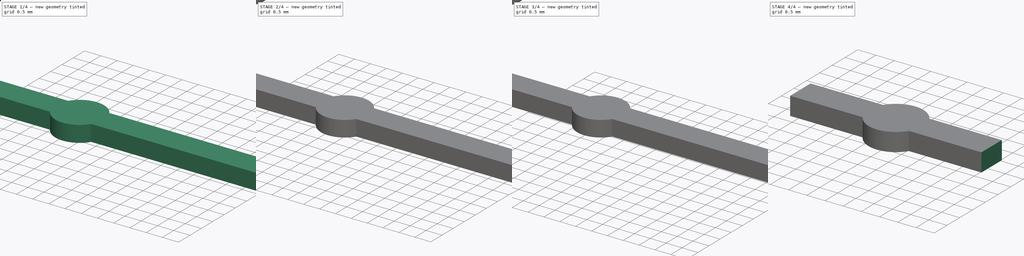
[diagram: build sequence overview — one tinted view per stage of 4, left to right]
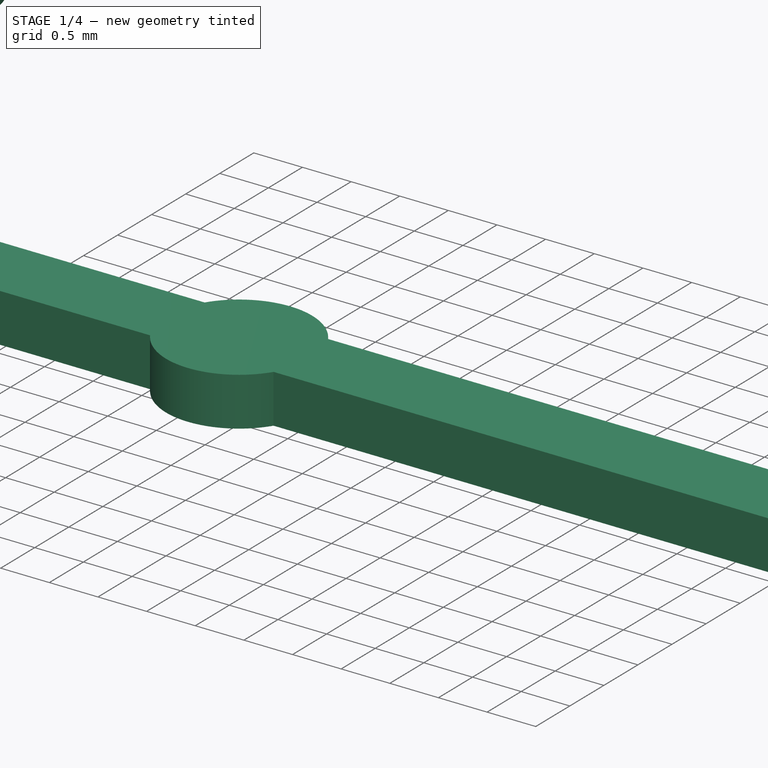
[diagram: stage 1 of 4 — iso view after this stage's code; geometry added in this stage tinted green]
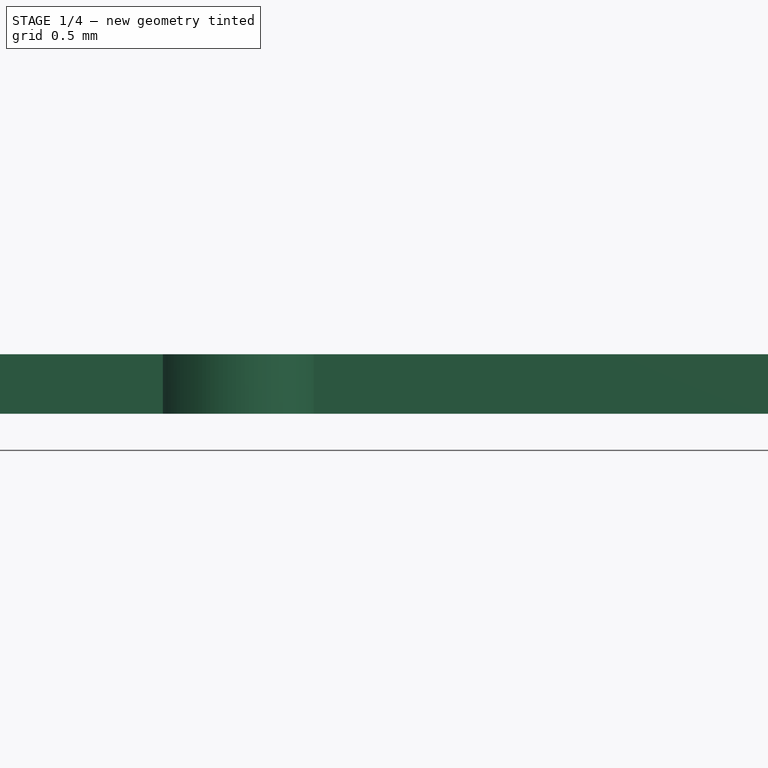
[diagram: stage 1 of 4 — front view after this stage's code; geometry added in this stage tinted green]
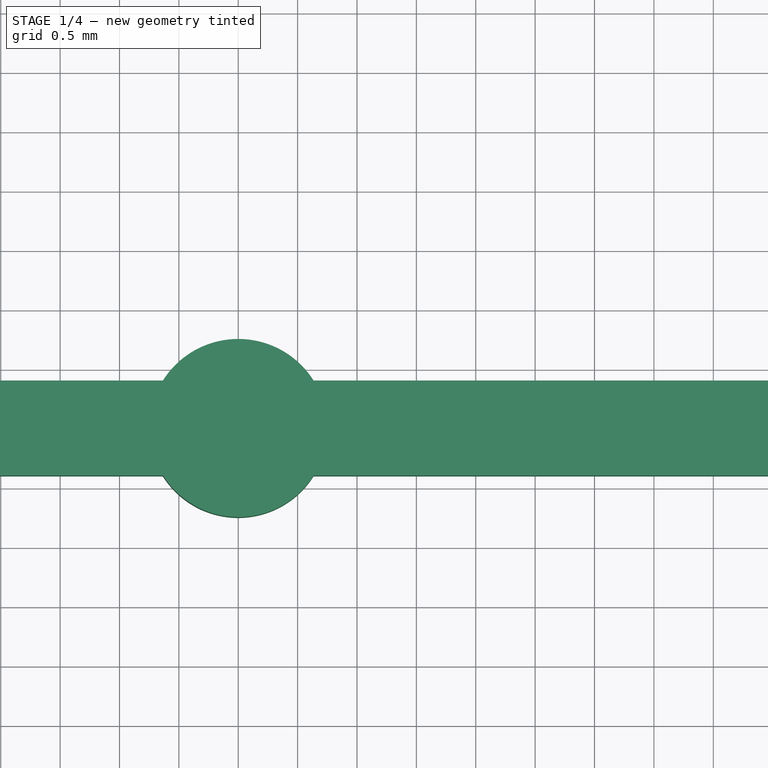
[diagram: stage 1 of 4 — top view after this stage's code; geometry added in this stage tinted green]
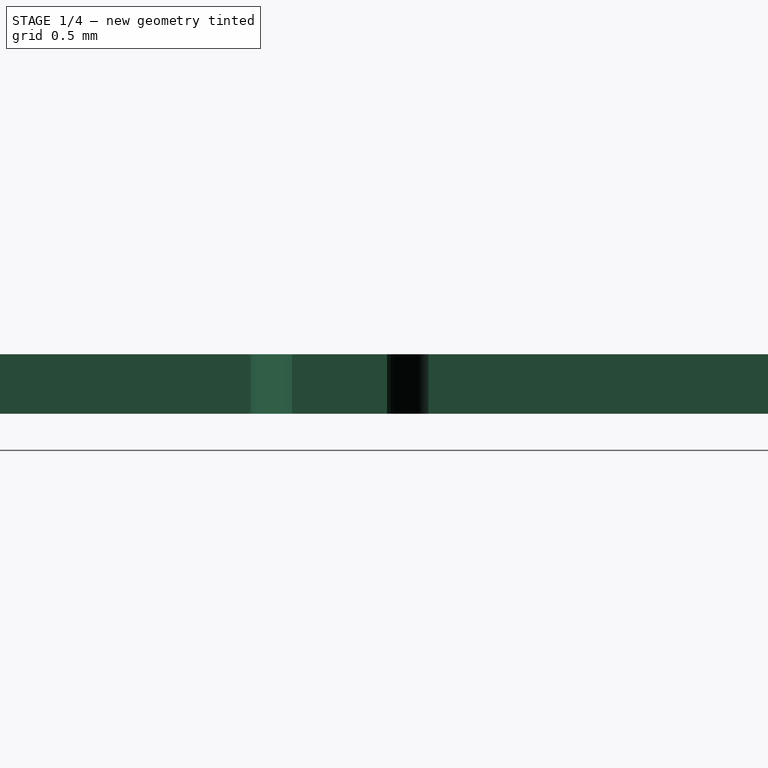
[diagram: stage 1 of 4 — right view after this stage's code; geometry added in this stage tinted green]
FCSTD DOCUMENT  (FreeCAD 0.21R33675 (Git))
Label: ax2
License: All rights reserved
LicenseURL: http://en.wikipedia.org/wiki/All_rights_reserved
objects: Sketcher::SketchObject×7, PartDesign::Point×5, PartDesign::Pad×5, PartDesign::Plane×4, PartDesign::SubtractiveSphere×4, PartDesign::Pocket×2, Spreadsheet::Sheet×1, PartDesign::Body×1
note: 39 computed .brp shape members not serialized (recipe doc carries the construction recipe); baked Part::Feature solids carry a one-line shape summary decoded from their .brp

FEATURE [Spreadsheet::Sheet] Spreadsheet
  cells = A2='Design Parameters; A3='RefLength; B3(RefLength)==1 mm; A4='Width; B4(Width)==0.8 * RefLength; A5='Height; B5(Height)==0.5 * RefLength; A6='PwpToTipLength; B6(PwpToTipLength)==10 * RefLength; A7='MuAngle; B7(MuAngle)==20 deg; A8='MuAxisToBallCenter; B8(MuAxisToBallCenter)==5.25 * RefLength; A9='MuAdjustedLength; B9(MuAdjustedLength)==MuAxisToBallCenter * sin(MuAngle); A10='PwpToBaseLength; B10(PwpToBaseLength)==5 * RefLength + MuAdjustedLength; A11='PwpToAx3Length; B11(PwpToAx3Length)==6.8 mm; A12='SlaOffset; B12(SlaOffset)==5 * RefLength; A13='ScuOffset; B13(ScuOffset)==5 * RefLength; A14='BallDiameter; B14(BallDiameter)==1.25 * RefLength; A15='BallMargin; B15(BallMargin)==0.01 * RefLength; A16='BallCutoutDiameter; B16(BallCutoutDiameter)==BallDiameter + 2 * BallMargin; A17='BallCutoutDepth; B17(BallCutoutDepth)==0.25 * BallCutoutDiameter; A18='MainSketchDatumPlaneZOffset; B18(MainSketchDatumPlaneZOffset)==0.5 * Height + 0.5 * BallCutoutDiameter - BallCutoutDepth; A19='Ax3PlateSketchDatumPlaneZOffset; B19(Ax3PlateSketchDatumPlaneZOffset)==MainSketchDatumPlaneZOffset; A21='PwpPlateDiameter; B21(PwpPlateDiameter)==1.2 * BallDiameter; A22='PwpBallCenterX; B22(PwpBallCenterX)==0 * RefLength; A23='PwpBallCenterY; B23(PwpBallCenterY)==0 * RefLength; A24='PwpBallCenterZ; B24(PwpBallCenterZ)==-(0.5 * Height + 0.5 * BallCutoutDiameter - BallCutoutDepth) + MainSketchDatumPlaneZOffset; A26='SlaPlateDiameter; B26(SlaPlateDiameter)==1.2 * BallDiameter; A27='SlaBallCenterX; B27(SlaBallCenterX)==-PwpToBaseLength; A28='SlaBallCenterY; B28(SlaBallCenterY)==SlaOffset; A29='SlaBallCenterZ; B29(SlaBallCenterZ)==0.5 * Height + 0.5 * BallCutoutDiameter - BallCutoutDepth + MainSketchDatumPlaneZOffset; A31='ScuPlateDiameter; B31(ScuPlateDiameter)==1.2 * BallDiameter; A32='ScuBallCenterX; B32(ScuBallCenterX)==-PwpToBaseLength; A33='ScuBallCenterY; B33(ScuBallCenterY)==-ScuOffset; A34='ScuBallCenterZ; B34(ScuBallCenterZ)==0.5 * Height + 0.5 * BallCutoutDiameter - BallCutoutDepth + MainSketchDatumPlaneZOffset; A36='Ax3PlateDiameter; B36(Ax3PlateDiameter)==1.5 * RefLength; A37='Ax3BallCenterX; B37(Ax3BallCenterX)==PwpToAx3Length; A38='Ax3BallCenterY; B38(Ax3BallCenterY)==0.5 * Width + 0.5 * BallCutoutDiameter - BallCutoutDepth; A39='Ax3BallCenterZ; B39(Ax3BallCenterZ)==0 * RefLength + MainSketchDatumPlaneZOffset; A41='FirstCutDatumPlaneXPos; B41(FirstCutDatumPlaneXPos)==0.5 * MuAxisToBallCenter; A42='SecondCutDatumPlaneXPos; B42(SecondCutDatumPlaneXPos)==0.5 * MuAxisToBallCenter
FEATURE [PartDesign::Point] DatumPoint  label="PwpBallCenterDatumPoint"
  AttacherType = Attacher::AttachEnginePoint
  MapMode = 32
  Support = -> [XY_Plane]
  expr: .AttachmentOffset.Base.x = Spreadsheet.PwpBallCenterX
  expr: .AttachmentOffset.Base.y = Spreadsheet.PwpBallCenterY
  expr: .AttachmentOffset.Base.z = Spreadsheet.PwpBallCenterZ
FEATURE [PartDesign::Point] DatumPoint001  label="SlaBallCenterDatumPoint"
  AttacherType = Attacher::AttachEnginePoint
  AttachmentOffset = pos=(-6.79561,5,1.135) rot=(0,0,1;0rad)
  MapMode = 32
  Placement = pos=(-6.79561,5,1.135) rot=(0,0,1;0rad)
  Support = -> [XY_Plane]
  expr: .AttachmentOffset.Base.x = Spreadsheet.SlaBallCenterX
  expr: .AttachmentOffset.Base.y = Spreadsheet.SlaBallCenterY
  expr: .AttachmentOffset.Base.z = Spreadsheet.SlaBallCenterZ
FEATURE [PartDesign::Point] DatumPoint002  label="ScuBallCenterDatumPoint"
  AttacherType = Attacher::AttachEnginePoint
  AttachmentOffset = pos=(-6.79561,-5,1.135) rot=(0,0,1;0rad)
  MapMode = 32
  Placement = pos=(-6.79561,-5,1.135) rot=(0,0,1;0rad)
  Support = -> [XY_Plane]
  expr: .AttachmentOffset.Base.x = Spreadsheet.ScuBallCenterX
  expr: .AttachmentOffset.Base.y = Spreadsheet.ScuBallCenterY
  expr: .AttachmentOffset.Base.z = Spreadsheet.ScuBallCenterZ
FEATURE [PartDesign::Point] DatumPoint003  label="Ax3BallCenterDatumPoint"
  AttacherType = Attacher::AttachEnginePoint
  AttachmentOffset = pos=(6.8,0.7175,0.5675) rot=(0,0,1;0rad)
  MapMode = 32
  Placement = pos=(6.8,0.7175,0.5675) rot=(0,0,1;0rad)
  Support = -> [XY_Plane]
  expr: .AttachmentOffset.Base.x = Spreadsheet.Ax3BallCenterX
  expr: .AttachmentOffset.Base.y = Spreadsheet.Ax3BallCenterY
  expr: .AttachmentOffset.Base.z = Spreadsheet.Ax3BallCenterZ
FEATURE [PartDesign::Plane] DatumPlane  label="MainSketchDatumPlane"
  AttachmentOffset = pos=(0,0,0.5675) rot=(0,0,1;0rad)
  Length = 60
  MapMode = 5
  Placement = pos=(0,0,0.5675) rot=(0,0,1;0rad)
  ResizeMode = 0
  Support = -> [XY_Plane]
  Width = 60
  expr: .AttachmentOffset.Base.z = Spreadsheet.MainSketchDatumPlaneZOffset
FEATURE [Sketcher::SketchObject] Sketch  label="MainSketch"
  FullyConstrained = true
  MapMode = 5
  Placement = pos=(0,0,0.5675) rot=(0,0,1;0rad)
  Support = -> [DatumPlane]
  expr: Constraints[10] = Spreadsheet.Width
  expr: Constraints[29] = Spreadsheet.PwpToBaseLength
  expr: Constraints[43] = Spreadsheet.PwpToTipLength
  expr: Constraints[6] = Spreadsheet.SlaOffset
  expr: Constraints[7] = Spreadsheet.ScuOffset
  expr: Constraints[8] = Spreadsheet.Width
  sketch-geometry (15):
    g0: LineSegment StartX=-7.19561 StartY=5 StartZ=0 EndX=-7.19561 EndY=0 EndZ=0
    g1: LineSegment StartX=-7.19561 StartY=0 StartZ=0 EndX=-7.19561 EndY=-5 EndZ=0
    g2: LineSegment StartX=-6.39561 StartY=-5 StartZ=0 EndX=-6.39561 EndY=-0.4 EndZ=0
    g3: LineSegment StartX=10 StartY=-0.4 StartZ=0 EndX=10 EndY=0.4 EndZ=0
    g4: LineSegment StartX=-6.39561 StartY=0.4 StartZ=0 EndX=-6.39561 EndY=5 EndZ=0
    g5: LineSegment StartX=-7.19561 StartY=5 StartZ=0 EndX=-6.79561 EndY=5 EndZ=0
    g6: LineSegment StartX=-6.79561 StartY=5 StartZ=0 EndX=-6.39561 EndY=5 EndZ=0
    g7: LineSegment StartX=-7.19561 StartY=-5 StartZ=0 EndX=-6.79561 EndY=-5 EndZ=0
    g8: LineSegment StartX=-6.79561 StartY=-5 StartZ=0 EndX=-6.39561 EndY=-5 EndZ=0
    g9: LineSegment StartX=-6.79561 StartY=5 StartZ=0 EndX=-6.79561 EndY=0 EndZ=0
    g10: LineSegment StartX=-6.79561 StartY=0 StartZ=0 EndX=-6.79561 EndY=-5 EndZ=0
    g11: LineSegment StartX=0 StartY=0.4 StartZ=0 EndX=0 EndY=0 EndZ=0
    g12: LineSegment StartX=0 StartY=0 StartZ=0 EndX=0 EndY=-0.4 EndZ=0
    g13: LineSegment StartX=-6.39561 StartY=0.4 StartZ=0 EndX=10 EndY=0.4 EndZ=0
    g14: LineSegment StartX=-6.39561 StartY=-0.4 StartZ=0 EndX=10 EndY=-0.4 EndZ=0
  constraints (44):
    c: Vertical(g0)
    c: Coincident(g0,g1)
    c: Vertical(g1)
    c: Vertical(g2)
    c: Vertical(g4)
    c: PointOnObject(g0,g-1)
    c: DistanceY(g0,g0) = 5
    c: DistanceY(g1,g0) = 5
    c: DistanceX(g0,g4) = 0.8
    c: Vertical(g3)
    c: DistanceY(g3,g3) = 0.8
    c: Horizontal(g5)
    c: Coincident(g5,g6)
    c: Horizontal(g6)
    c: Equal(g5,g6)
    c: Coincident(g0,g5)
    c: Coincident(g6,g4)
    c: Horizontal(g7)
    c: Coincident(g7,g8)
    c: Horizontal(g8)
    c: Equal(g7,g8)
    c: Coincident(g1,g7)
    c: Coincident(g8,g2)
    c: Coincident(g9,g10)
    c: PointOnObject(g9,g-1)
    c: Coincident(g9,g5)
    c: Coincident(g10,g7)
    c: Vertical(g9)
    c: Equal(g5,g7)
    c: DistanceX(g9,g-1) = 6.79561
    c: Coincident(g11,g12)
    c: Equal(g11,g12)
    c: Coincident(g11,g-1)
    c: Vertical(g11)
    c: Horizontal(g13)
    c: Coincident(g4,g13)
    c: PointOnObject(g11,g13)
    c: Coincident(g13,g3)
    c: Horizontal(g14)
    c: Coincident(g2,g14)
    c: PointOnObject(g12,g14)
    c: Coincident(g14,g3)
    c: Vertical(g12)
    c: DistanceX(g12,g3) = 10
FEATURE [PartDesign::Pad] Pad  label="MainPad"
  Direction = (0,0,1)
  Length = 0.5
  Length2 = 10
  Midplane = true
  Placement = pos=(0,0,0.5675) rot=(0,0,1;0rad)
  Profile = -> Sketch
  ReferenceAxis = -> Sketch [N_Axis]
  Type = 0
  expr: Length = Spreadsheet.Height
FEATURE [Sketcher::SketchObject] Sketch001  label="PwpPlateSketch"
  FullyConstrained = true
  MapMode = 5
  Placement = pos=(0,0,0.5675) rot=(0,0,1;0rad)
  Support = -> [DatumPlane]
  expr: Constraints[1] = Spreadsheet.PwpPlateDiameter
  sketch-geometry (1):
    g0: Circle CenterX=0 CenterY=0 CenterZ=0 NormalX=0 NormalY=0 NormalZ=1 AngleXU=0 Radius=0.75
  constraints (2):
    c: Coincident(g0,g-1)
    c: Diameter(g0) = 1.5
FEATURE [PartDesign::Pad] Pad001  label="PwpPlatePad"
  BaseFeature = -> Pad
  Direction = (0,0,1)
  Length = 0.5
  Length2 = 10
  Midplane = true
  Placement = pos=(0,0,0.5675) rot=(0,0,1;0rad)
  Profile = -> Sketch001
  ReferenceAxis = -> Sketch001 [N_Axis]
  Type = 0
  expr: Length = Spreadsheet.Height
FEATURE [Sketcher::SketchObject] Sketch002  label="SlaPlateSketch"
  FullyConstrained = true
  MapMode = 5
  Placement = pos=(0,0,0.5675) rot=(0,0,1;0rad)
  Support = -> [DatumPlane]
  expr: Constraints[4] = Spreadsheet.PwpToBaseLength
  expr: Constraints[5] = Spreadsheet.SlaOffset
  expr: Constraints[7] = Spreadsheet.SlaPlateDiameter
  sketch-geometry (3):
    g0: LineSegment StartX=0 StartY=0 StartZ=0 EndX=-6.79561 EndY=0 EndZ=0
    g1: LineSegment StartX=-6.79561 StartY=0 StartZ=0 EndX=-6.79561 EndY=5 EndZ=0
    g2: Circle CenterX=-6.79561 CenterY=5 CenterZ=0 NormalX=0 NormalY=0 NormalZ=1 AngleXU=0 Radius=0.75
  constraints (8):
    c: Horizontal(g0)
    c: Coincident(g0,g1)
    c: Vertical(g1)
    c: Coincident(g0,g-1)
    c: DistanceX(g0,g0) = 6.79561
    c: DistanceY(g1,g1) = 5
    c: Coincident(g2,g1)
    c: Diameter(g2) = 1.5
FEATURE [PartDesign::Pad] Pad002  label="SlaPlatePad"
  BaseFeature = -> Pad001
  Direction = (0,0,1)
  Length = 0.5
  Length2 = 10
  Midplane = true
  Placement = pos=(0,0,0.5675) rot=(0,0,1;0rad)
  Profile = -> Sketch002
  ReferenceAxis = -> Sketch002 [N_Axis]
  Type = 0
  expr: Length = Spreadsheet.Height
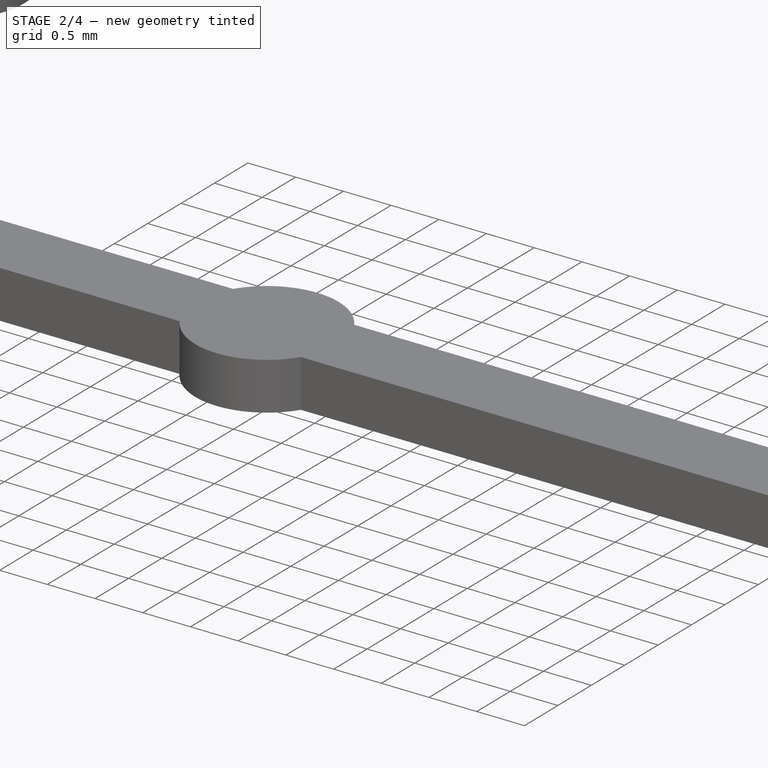
[diagram: stage 2 of 4 — iso view after this stage's code; geometry added in this stage tinted green]
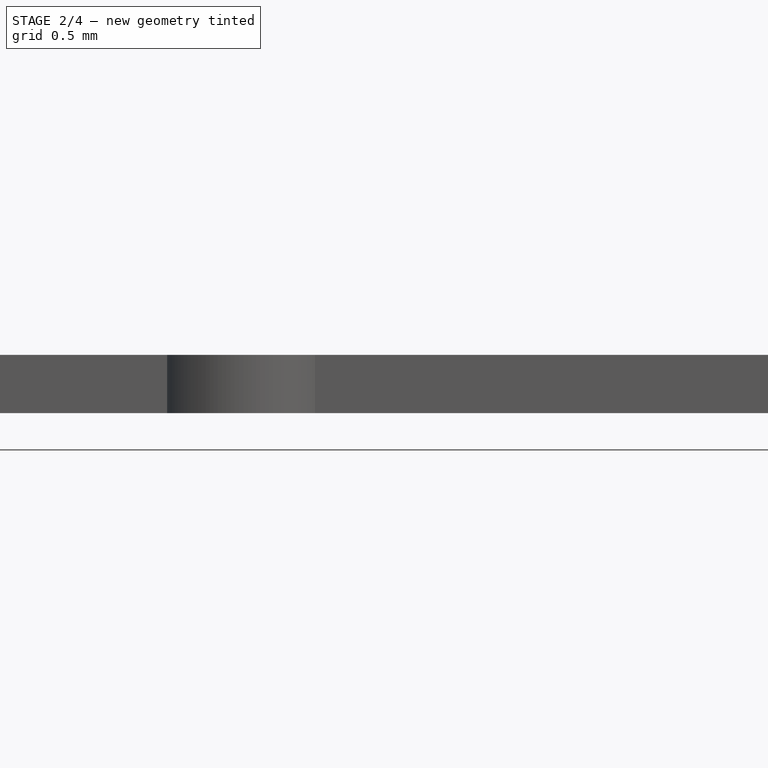
[diagram: stage 2 of 4 — front view after this stage's code; geometry added in this stage tinted green]
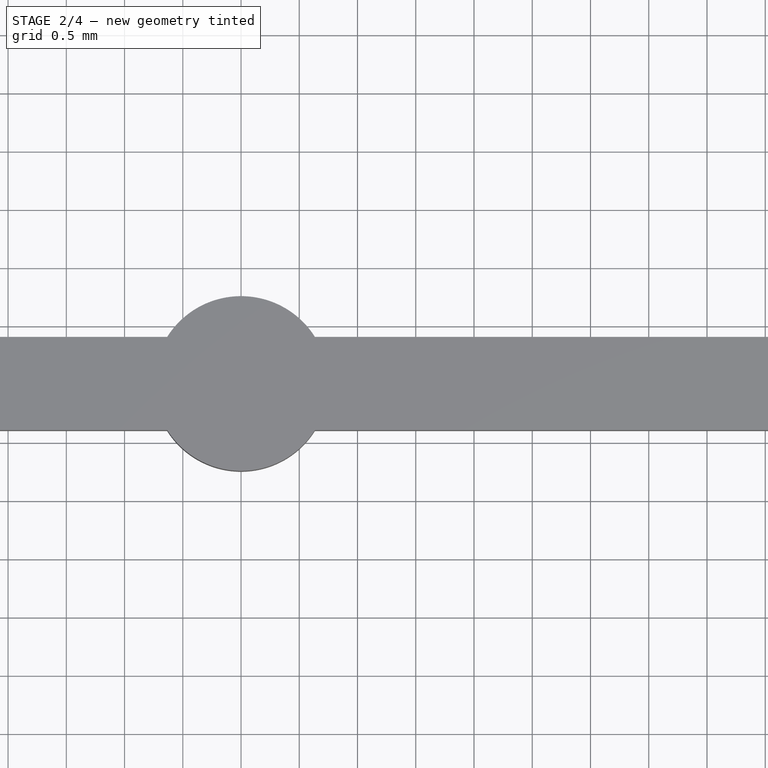
[diagram: stage 2 of 4 — top view after this stage's code; geometry added in this stage tinted green]
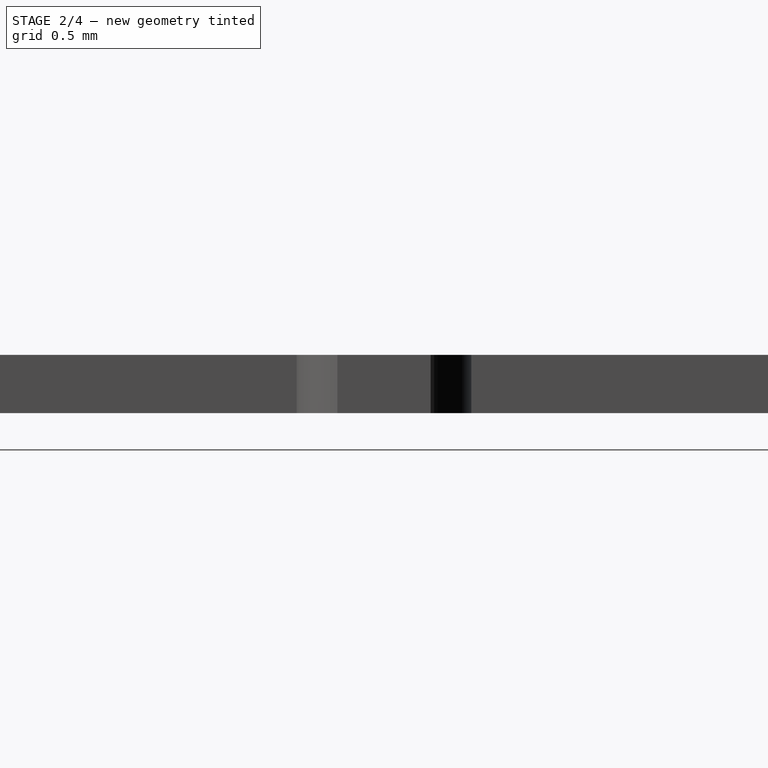
[diagram: stage 2 of 4 — right view after this stage's code; geometry added in this stage tinted green]
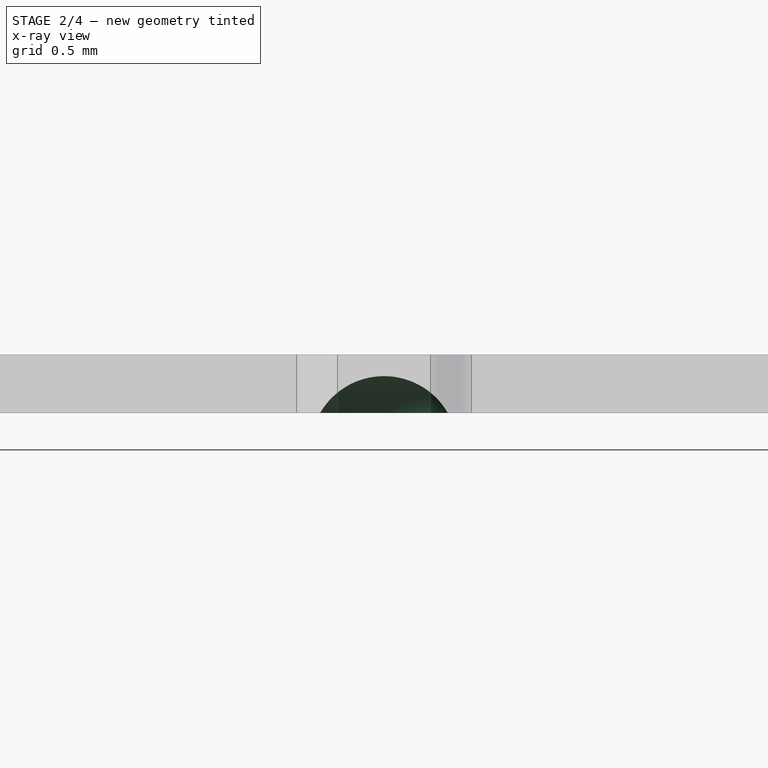
[diagram: stage 2 of 4 — x-ray composite at the right view; earlier geometry ghosted, this stage's added geometry solid]
FEATURE [Sketcher::SketchObject] Sketch003  label="ScuPlateSketch"
  FullyConstrained = true
  MapMode = 5
  Placement = pos=(0,0,0.5675) rot=(0,0,1;0rad)
  Support = -> [DatumPlane]
  expr: Constraints[4] = Spreadsheet.PwpToBaseLength
  expr: Constraints[5] = Spreadsheet.ScuOffset
  expr: Constraints[7] = Spreadsheet.ScuPlateDiameter
  sketch-geometry (3):
    g0: LineSegment StartX=0 StartY=0 StartZ=0 EndX=-6.79561 EndY=0 EndZ=0
    g1: LineSegment StartX=-6.79561 StartY=0 StartZ=0 EndX=-6.79561 EndY=-5 EndZ=0
    g2: Circle CenterX=-6.79561 CenterY=-5 CenterZ=0 NormalX=0 NormalY=0 NormalZ=1 AngleXU=0 Radius=0.75
  constraints (8):
    c: Horizontal(g0)
    c: Coincident(g0,g1)
    c: Vertical(g1)
    c: Coincident(g0,g-1)
    c: DistanceX(g0,g0) = 6.79561
    c: DistanceY(g1,g1) = 5
    c: Coincident(g2,g1)
    c: Diameter(g2) = 1.5
FEATURE [PartDesign::Pad] Pad003  label="ScuPlatePad"
  BaseFeature = -> Pad002
  Direction = (0,0,1)
  Length = 0.5
  Length2 = 10
  Midplane = true
  Placement = pos=(0,0,0.5675) rot=(0,0,1;0rad)
  Profile = -> Sketch003
  ReferenceAxis = -> Sketch003 [N_Axis]
  Type = 0
  expr: Length = Spreadsheet.Height
FEATURE [PartDesign::SubtractiveSphere] Sphere  label="PwpBallCutoutSphere"
  Angle1 = -90
  Angle2 = 90
  Angle3 = 360
  AttacherType = Attacher::AttachEngine3D
  BaseFeature = -> Pad003
  MapMode = 1
  Radius = 0.635
  Support = -> [DatumPoint]
  expr: Radius = Spreadsheet.BallCutoutDiameter * 0.5
FEATURE [PartDesign::SubtractiveSphere] Sphere001  label="SlaBallCutoutSphere"
  Angle1 = -90
  Angle2 = 90
  Angle3 = 360
  AttacherType = Attacher::AttachEngine3D
  BaseFeature = -> Sphere
  MapMode = 1
  Placement = pos=(-6.79561,5,1.135) rot=(0,0,1;0rad)
  Radius = 0.635
  Support = -> [DatumPoint001]
  expr: Radius = Spreadsheet.BallCutoutDiameter * 0.5
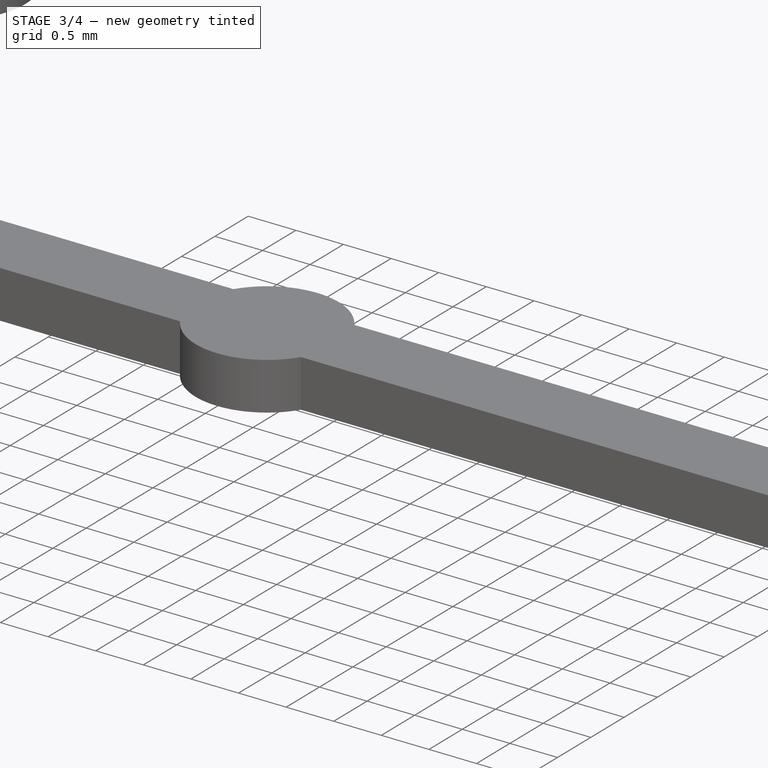
[diagram: stage 3 of 4 — iso view after this stage's code; geometry added in this stage tinted green]
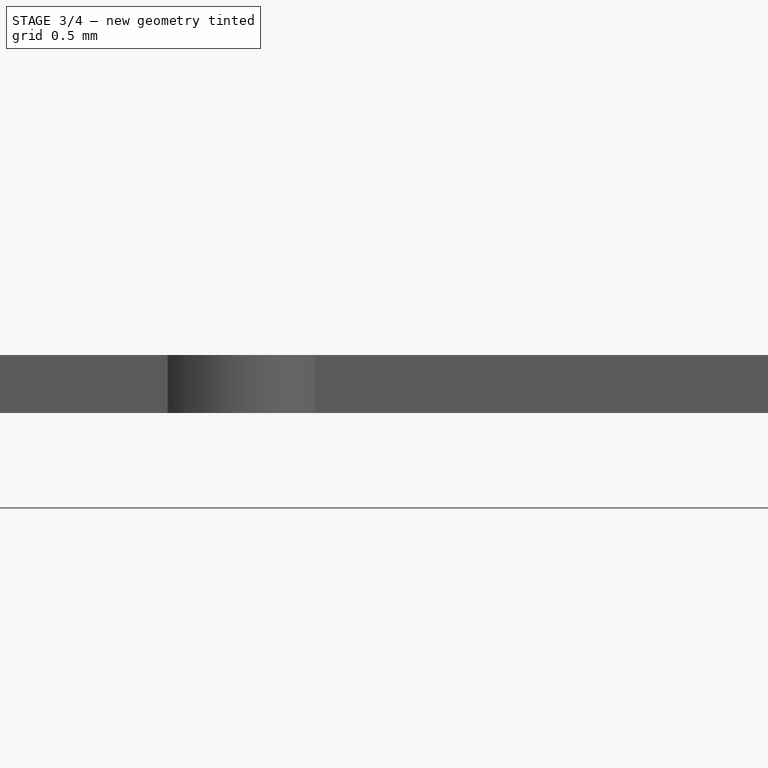
[diagram: stage 3 of 4 — front view after this stage's code; geometry added in this stage tinted green]
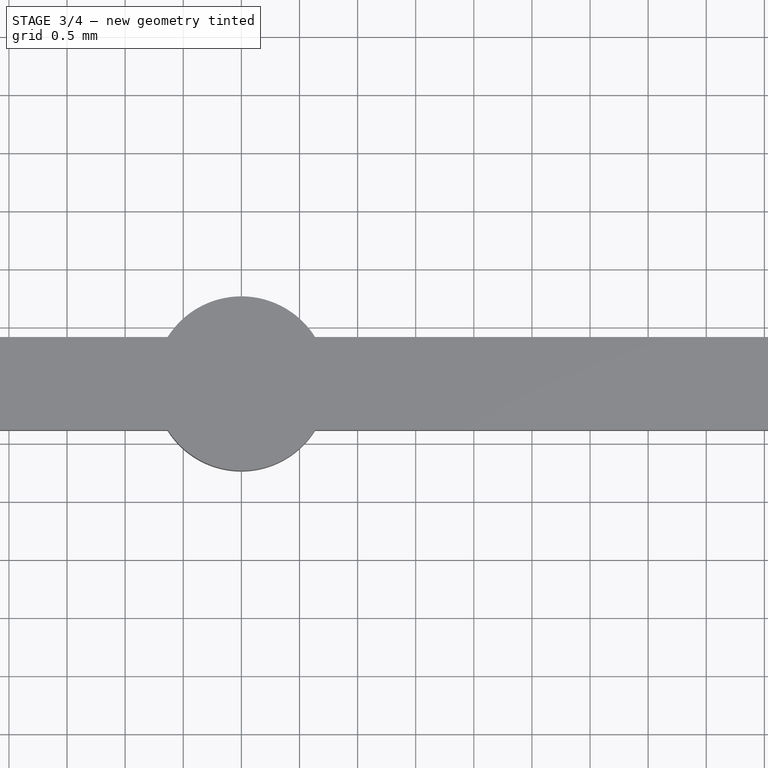
[diagram: stage 3 of 4 — top view after this stage's code; geometry added in this stage tinted green]
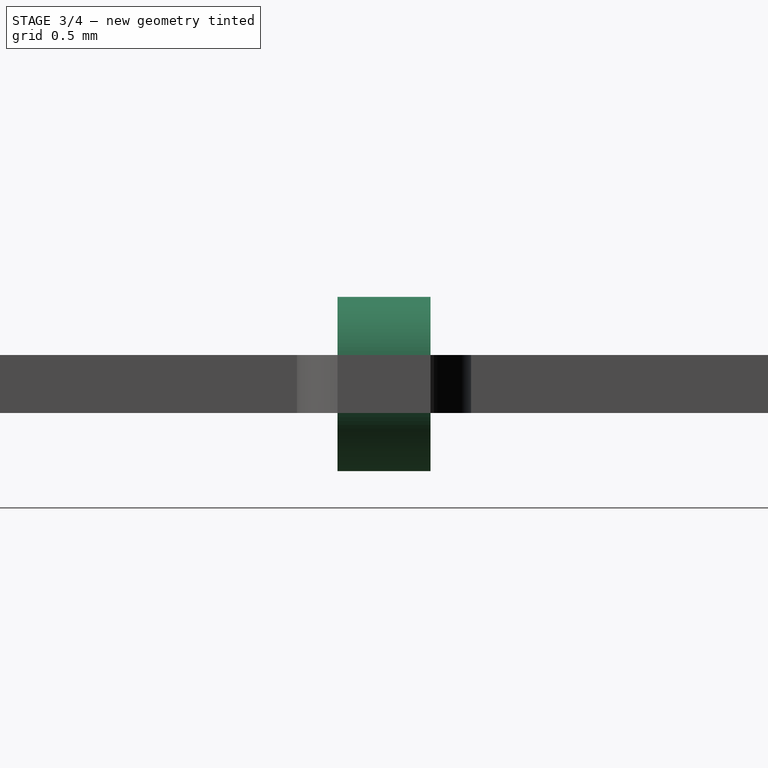
[diagram: stage 3 of 4 — right view after this stage's code; geometry added in this stage tinted green]
FEATURE [PartDesign::SubtractiveSphere] Sphere002  label="ScuBallCutoutSphere"
  Angle1 = -90
  Angle2 = 90
  Angle3 = 360
  AttacherType = Attacher::AttachEngine3D
  BaseFeature = -> Sphere001
  MapMode = 1
  Placement = pos=(-6.79561,-5,1.135) rot=(0,0,1;0rad)
  Radius = 0.635
  Support = -> [DatumPoint002]
  expr: Radius = Spreadsheet.BallCutoutDiameter * 0.5
FEATURE [PartDesign::Plane] DatumPlane001  label="Ax3PlateSketchDatumPlane"
  AttachmentOffset = pos=(0,0.5675,0) rot=(0,0,1;0rad)
  Length = 60
  MapMode = 5
  Placement = pos=(0,-1e-16,0.5675) rot=(1,0,0;1.5708rad)
  ResizeMode = 0
  Support = -> [XZ_Plane]
  Width = 60
  expr: .AttachmentOffset.Base.y = Spreadsheet.Ax3PlateSketchDatumPlaneZOffset
FEATURE [Sketcher::SketchObject] Sketch004  label="Ax3PlateSketch"
  FullyConstrained = true
  MapMode = 5
  Placement = pos=(0,-1e-16,0.5675) rot=(1,0,0;1.5708rad)
  Support = -> [DatumPlane001]
  expr: Constraints[2] = Spreadsheet.PwpToAx3Length
  expr: Constraints[4] = Spreadsheet.Ax3PlateDiameter
  sketch-geometry (2):
    g0: LineSegment StartX=0 StartY=0 StartZ=0 EndX=6.8 EndY=0 EndZ=0
    g1: Circle CenterX=6.8 CenterY=0 CenterZ=0 NormalX=0 NormalY=0 NormalZ=1 AngleXU=0 Radius=0.75
  constraints (5):
    c: Horizontal(g0)
    c: Coincident(g-1,g0)
    c: DistanceX(g0,g0) = 6.8
    c: Coincident(g1,g0)
    c: Diameter(g1) = 1.5
FEATURE [PartDesign::Pad] Pad004  label="Ax3PlatePad"
  BaseFeature = -> Sphere002
  Direction = (0,-1,-2e-16)
  Length = 0.8
  Length2 = 10
  Midplane = true
  Placement = pos=(-6.79561,-5,1.135) rot=(0,0,1;0rad)
  Profile = -> Sketch004
  ReferenceAxis = -> Sketch004 [N_Axis]
  Type = 0
  expr: Length = Spreadsheet.Width
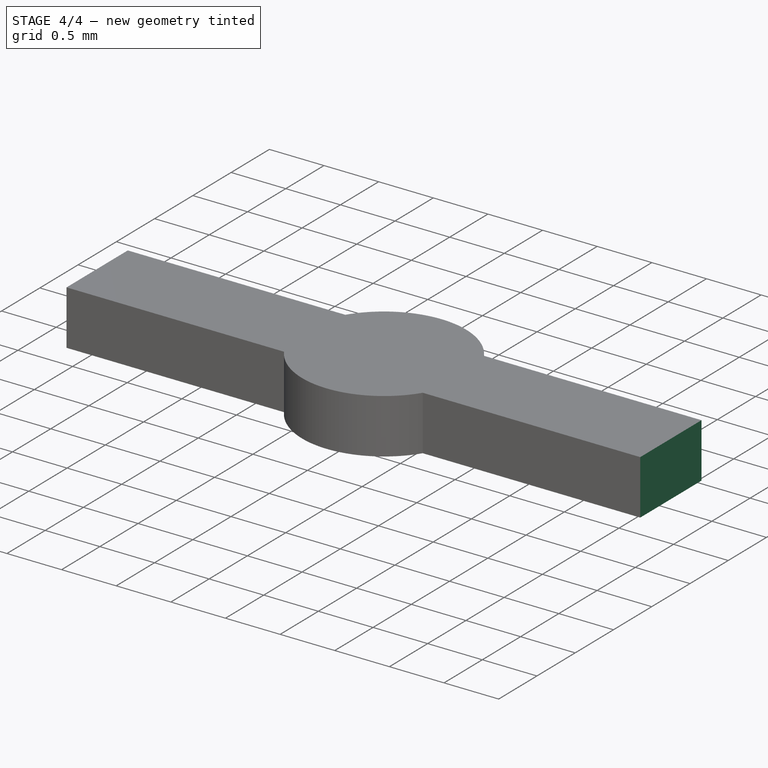
[diagram: stage 4 of 4 — iso view after this stage's code; geometry added in this stage tinted green]
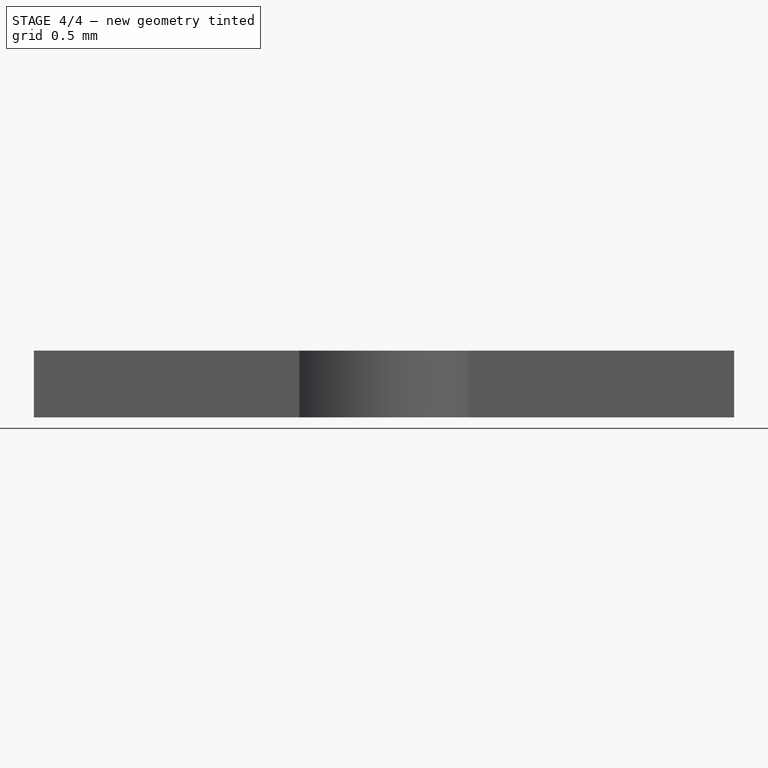
[diagram: stage 4 of 4 — front view after this stage's code; geometry added in this stage tinted green]
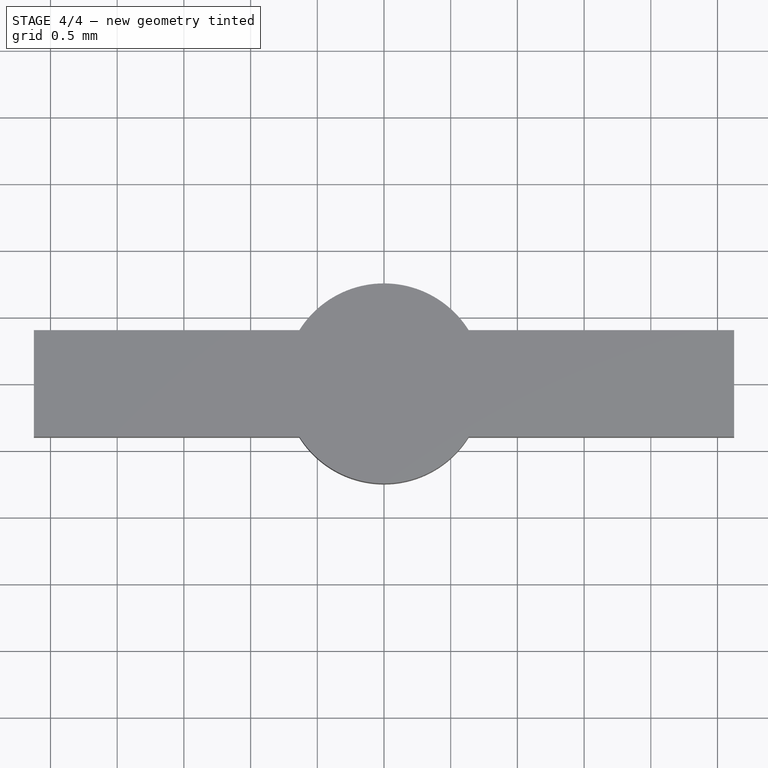
[diagram: stage 4 of 4 — top view after this stage's code; geometry added in this stage tinted green]
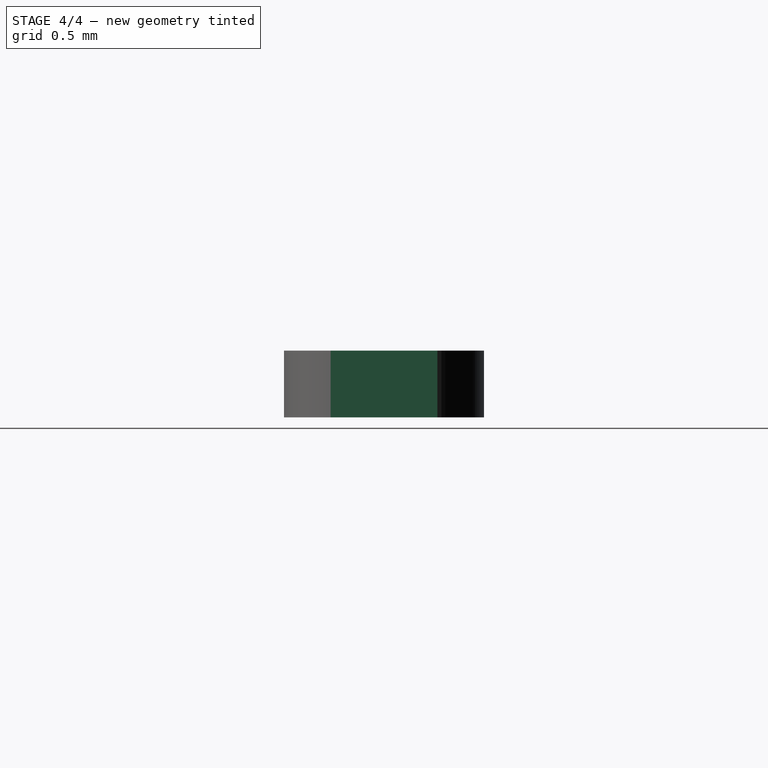
[diagram: stage 4 of 4 — right view after this stage's code; geometry added in this stage tinted green]
FEATURE [PartDesign::SubtractiveSphere] Sphere003  label="Ax3BallCutoutSphere"
  Angle1 = -90
  Angle2 = 90
  Angle3 = 360
  AttacherType = Attacher::AttachEngine3D
  BaseFeature = -> Pad004
  MapMode = 1
  Placement = pos=(6.8,0.7175,0.5675) rot=(0,0,1;0rad)
  Radius = 0.635
  Support = -> [DatumPoint003]
  expr: Radius = Spreadsheet.BallCutoutDiameter * 0.5
FEATURE [PartDesign::Point] DatumPoint004  label="WingWeldDatumPoint"
  AttacherType = Attacher::AttachEnginePoint
  AttachmentOffset = pos=(10,0,0) rot=(0,0,1;0rad)
  MapMode = 32
  Placement = pos=(10,0,0.5675) rot=(0,0,1;0rad)
  Support = -> [DatumPlane]
  expr: .AttachmentOffset.Base.x = Spreadsheet.PwpToTipLength
FEATURE [PartDesign::Plane] DatumPlane002  label="FirstCutDatumPlane"
  AttachmentOffset = pos=(0,0,2.625) rot=(0,0,1;0rad)
  Length = 60
  MapMode = 5
  Placement = pos=(-2.625,6e-16,-6e-16) rot=(-0.57735,0.57735,0.57735;4.18879rad)
  ResizeMode = 0
  Support = -> [YZ_Plane]
  Width = 60
  expr: .AttachmentOffset.Base.z = Spreadsheet.FirstCutDatumPlaneXPos
FEATURE [PartDesign::Plane] DatumPlane003  label="SecondDatumPlane"
  AttachmentOffset = pos=(0,0,2.625) rot=(0,0,1;0rad)
  Length = 60
  MapMode = 5
  Placement = pos=(2.625,-6e-16,6e-16) rot=(0.57735,0.57735,0.57735;2.0944rad)
  ResizeMode = 0
  Support = -> [YZ_Plane]
  Width = 60
  expr: .AttachmentOffset.Base.z = Spreadsheet.SecondCutDatumPlaneXPos
FEATURE [Sketcher::SketchObject] Sketch005  label="FirstCutSketch"
  FullyConstrained = true
  MapMode = 5
  Placement = pos=(-2.625,6e-16,-6e-16) rot=(-0.57735,0.57735,0.57735;4.18879rad)
  Support = -> [DatumPlane002]
  sketch-geometry (5):
    g0: LineSegment StartX=-10 StartY=10 StartZ=0 EndX=-10 EndY=-10 EndZ=0
    g1: LineSegment StartX=-10 StartY=-10 StartZ=0 EndX=10 EndY=-10 EndZ=0
    g2: LineSegment StartX=10 StartY=-10 StartZ=0 EndX=10 EndY=10 EndZ=0
    g3: LineSegment StartX=10 StartY=10 StartZ=0 EndX=-10 EndY=10 EndZ=0
    g4: GeomPoint X=0 Y=0 Z=0
  constraints (12):
    c: Coincident(g0,g1)
    c: Coincident(g1,g2)
    c: Coincident(g2,g3)
    c: Coincident(g3,g0)
    c: Horizontal(g1)
    c: Horizontal(g3)
    c: Vertical(g0)
    c: Vertical(g2)
    c: Symmetric(g1,g0,g4)
    c: Coincident(g4,g-1)
    c: DistanceX(g1,g1) = 20
    c: DistanceY(g2,g2) = 20
FEATURE [PartDesign::Pocket] Pocket  label="FirstCutPocket"
  BaseFeature = -> Sphere003
  Direction = (1,-4e-16,2e-16)
  Length = 5
  Length2 = 5
  Placement = pos=(6.8,0.7175,0.5675) rot=(0,0,1;0rad)
  Profile = -> Sketch005
  ReferenceAxis = -> Sketch005 [N_Axis]
  Reversed = true
  Type = 1
FEATURE [Sketcher::SketchObject] Sketch006
  FullyConstrained = true
  MapMode = 5
  Placement = pos=(2.625,-6e-16,6e-16) rot=(0.57735,0.57735,0.57735;2.0944rad)
  Support = -> [DatumPlane003]
  expr: Constraints[10] = 20
  sketch-geometry (5):
    g0: LineSegment StartX=-10 StartY=10 StartZ=0 EndX=-10 EndY=-10 EndZ=0
    g1: LineSegment StartX=-10 StartY=-10 StartZ=0 EndX=10 EndY=-10 EndZ=0
    g2: LineSegment StartX=10 StartY=-10 StartZ=0 EndX=10 EndY=10 EndZ=0
    g3: LineSegment StartX=10 StartY=10 StartZ=0 EndX=-10 EndY=10 EndZ=0
    g4: GeomPoint X=0 Y=0 Z=0
  constraints (12):
    c: Coincident(g0,g1)
    c: Coincident(g1,g2)
    c: Coincident(g2,g3)
    c: Coincident(g3,g0)
    c: Horizontal(g1)
    c: Horizontal(g3)
    c: Vertical(g0)
    c: Vertical(g2)
    c: Symmetric(g1,g0,g4)
    c: Coincident(g4,g-1)
    c: DistanceX(g1,g1) = 20
    c: DistanceY(g2,g2) = 20
FEATURE [PartDesign::Pocket] Pocket001  label="SecondCutPocket"
  BaseFeature = -> Pocket
  Direction = (-1,1e-16,-1e-16)
  Length = 5
  Length2 = 5
  Placement = pos=(6.8,0.7175,0.5675) rot=(0,0,1;0rad)
  Profile = -> Sketch006
  ReferenceAxis = -> Sketch006 [N_Axis]
  Reversed = true
  Type = 1
FEATURE [PartDesign::Body] Body
  Group = -> [DatumPlane,Sketch,Pad,Sketch001,Pad001,Sketch002,Pad002,Sketch003,Pad003,DatumPoint,DatumPoint001,DatumPoint002,DatumPoint004,Sphere,Sphere001,Sphere002,DatumPlane001,Sketch004,Pad004,DatumPoint003,Sphere003,DatumPlane002,DatumPlane003,Sketch005,Pocket,Sketch006,Pocket001]
  Origin = -> Origin
  Tip = -> Pocket001
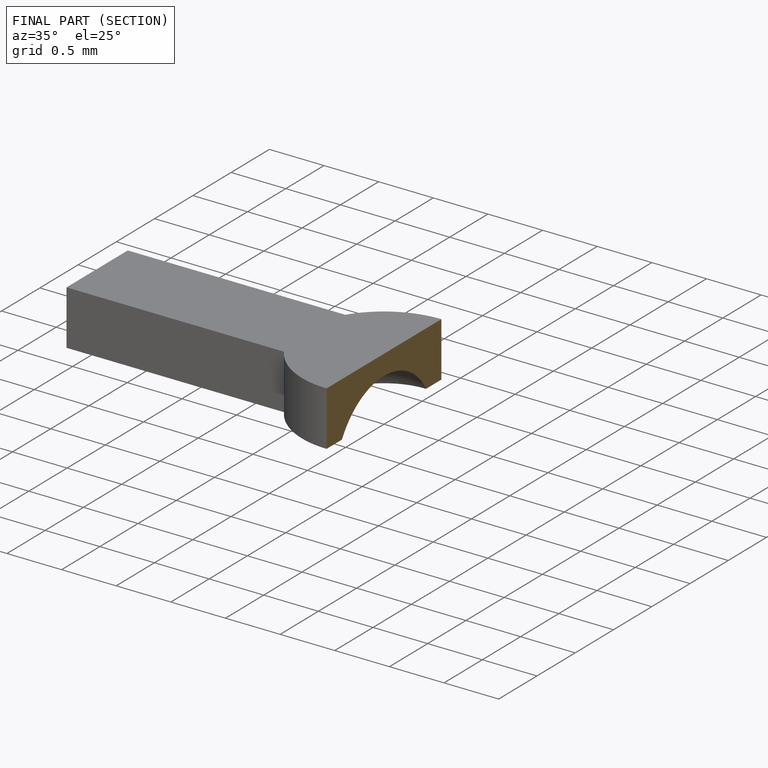
[diagram: finished part — half-section view (interior)]
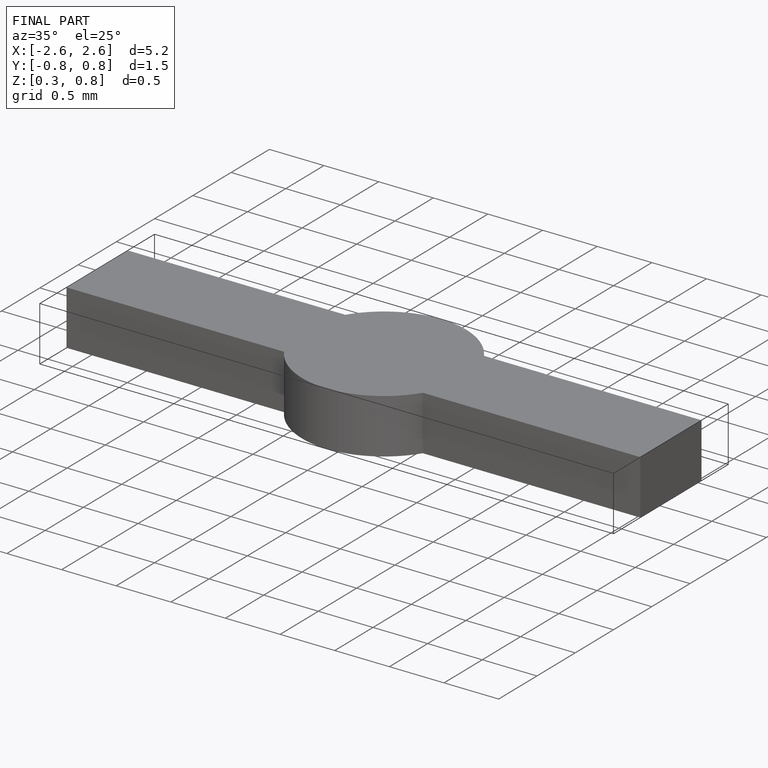
[diagram: finished part — iso view with bounding-box wireframe]
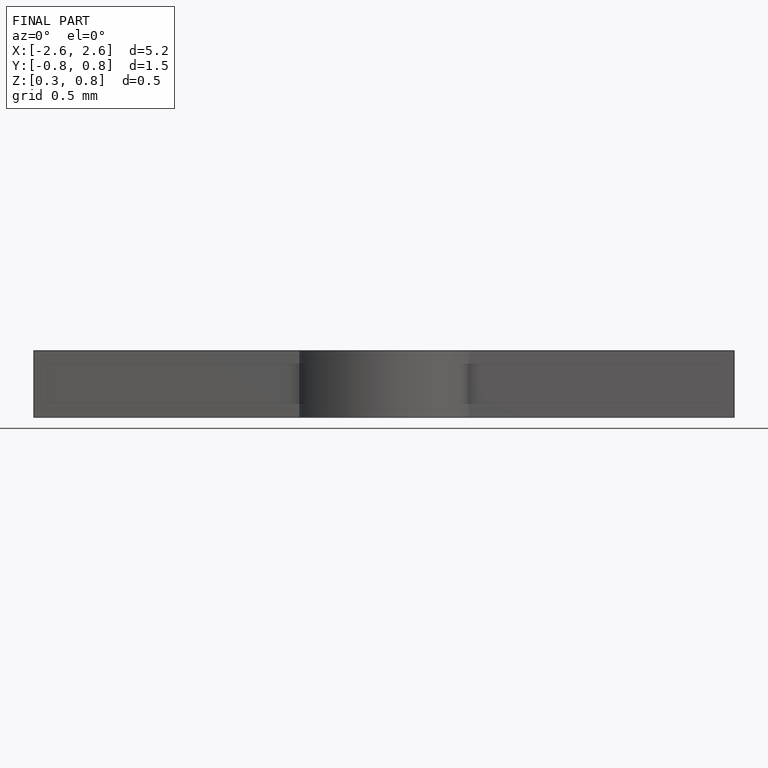
[diagram: finished part — front view with bounding-box wireframe]
